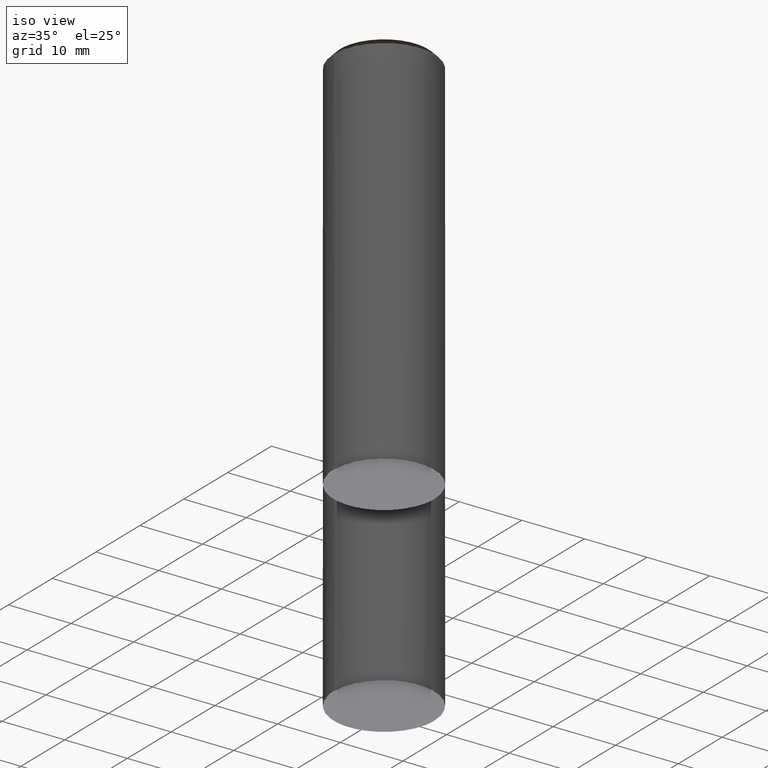
[diagram: clean part render]
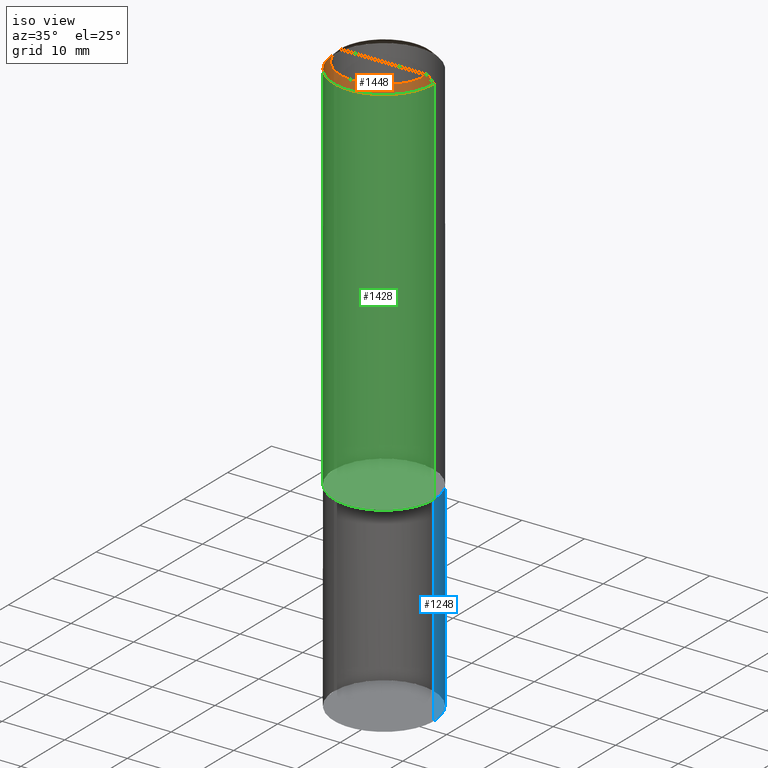
[diagram: same view with three faces highlighted in distinct colors, each labeled with its STEP entity id]
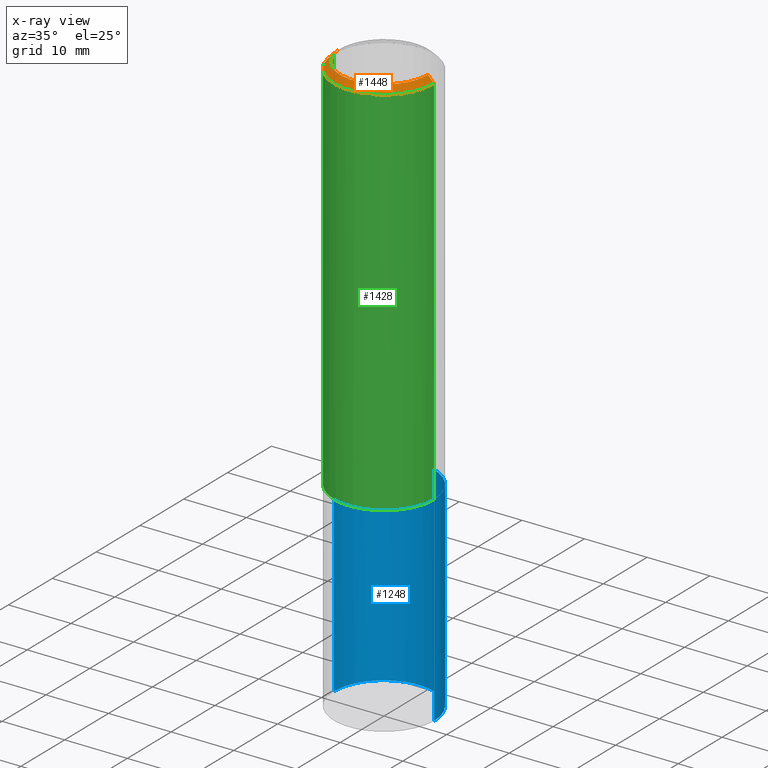
[diagram: x-ray of the same camera — body ghosted, the three highlighted faces saturated]
A machine part, iso view with three faces highlighted in distinct colors.
The next image is the same camera in x-ray (body ghosted, the three faces saturated) — at least one of them is partly hidden behind the body in this view.
Their STEP definitions:

[orange] entity #1448 — the highlighted face is a freeform B-spline surface patch.
#1190=CARTESIAN_POINT('',(8.0,0.0,60.0));
#1194=CARTESIAN_POINT('',(-8.0,0.0,60.0));
#1195=CARTESIAN_POINT('',(7.0,0.0,61.0));
#1199=CARTESIAN_POINT('',(-7.0,0.0,61.0));
#1201=CARTESIAN_POINT('',(-8.0,-8.0,60.0));
#1202=CARTESIAN_POINT('',(0.0,-8.0,60.0));
#1203=CARTESIAN_POINT('',(8.0,-8.0,60.0));
#1204=CARTESIAN_POINT('',(-7.0,-7.0,61.0));
#1205=CARTESIAN_POINT('',(0.0,-7.0,61.0));
#1206=CARTESIAN_POINT('',(7.0,-7.0,61.0));
#1429=(
BOUNDED_SURFACE()
B_SPLINE_SURFACE(1,2,(
(#1194,#1201,#1202,#1203,#1190),
(#1199,#1204,#1205,#1206,#1195)
), .UNSPECIFIED.,.F.,.F.,.F.)
B_SPLINE_SURFACE_WITH_KNOTS((2,2),(3,2,3),(
0.0,1.0),(
0.0,0.5,1.0), .UNSPECIFIED.)
GEOMETRIC_REPRESENTATION_ITEM()
RATIONAL_B_SPLINE_SURFACE(((1.0,0.707106781187,1.0,0.707106781187,1.0),
(1.0,0.707106781187,1.0,0.707106781187,1.0)
))
REPRESENTATION_ITEM('')
SURFACE()
);
#1430=(
BOUNDED_CURVE()
B_SPLINE_CURVE(2,(#1190,#1203,#1202,#1201,#1194),.UNSPECIFIED.,.F.,.F.)
B_SPLINE_CURVE_WITH_KNOTS((3,2,3),
(0.0,0.5,1.0),.UNSPECIFIED.)
CURVE()
GEOMETRIC_REPRESENTATION_ITEM()
RATIONAL_B_SPLINE_CURVE((1.0,0.707106781187,1.0,0.707106781187,1.0))
REPRESENTATION_ITEM('')
);
#1431=(
BOUNDED_CURVE()
B_SPLINE_CURVE(1,(#1194,#1199),.UNSPECIFIED.,.F.,.F.)
B_SPLINE_CURVE_WITH_KNOTS((2,2),
(0.0,1.0),.UNSPECIFIED.)
CURVE()
GEOMETRIC_REPRESENTATION_ITEM()
RATIONAL_B_SPLINE_CURVE((1.0,1.0))
REPRESENTATION_ITEM('')
);
#1432=(
BOUNDED_CURVE()
B_SPLINE_CURVE(2,(#1199,#1204,#1205,#1206,#1195),.UNSPECIFIED.,.F.,.F.)
B_SPLINE_CURVE_WITH_KNOTS((3,2,3),
(0.0,0.5,1.0),.UNSPECIFIED.)
CURVE()
GEOMETRIC_REPRESENTATION_ITEM()
RATIONAL_B_SPLINE_CURVE((1.0,0.707106781187,1.0,0.707106781187,1.0))
REPRESENTATION_ITEM('')
);
#1433=(
BOUNDED_CURVE()
B_SPLINE_CURVE(1,(#1195,#1190),.UNSPECIFIED.,.F.,.F.)
B_SPLINE_CURVE_WITH_KNOTS((2,2),
(0.0,1.0),.UNSPECIFIED.)
CURVE()
GEOMETRIC_REPRESENTATION_ITEM()
RATIONAL_B_SPLINE_CURVE((1.0,1.0))
REPRESENTATION_ITEM('')
);
#1434=VERTEX_POINT('',#1190);
#1435=VERTEX_POINT('',#1194);
#1436=VERTEX_POINT('',#1195);
#1437=VERTEX_POINT('',#1199);
#1438=EDGE_CURVE('',#1434,#1435,#1430,.T.);
#1439=EDGE_CURVE('',#1435,#1437,#1431,.T.);
#1440=EDGE_CURVE('',#1437,#1436,#1432,.T.);
#1441=EDGE_CURVE('',#1436,#1434,#1433,.T.);
#1442=ORIENTED_EDGE('',*,*,#1438,.T.);
#1443=ORIENTED_EDGE('',*,*,#1439,.T.);
#1444=ORIENTED_EDGE('',*,*,#1440,.T.);
#1445=ORIENTED_EDGE('',*,*,#1441,.T.);
#1446=EDGE_LOOP('',(#1442,#1443,#1444,#1445));
#1447=FACE_OUTER_BOUND('',#1446,.T.);
#1448=ADVANCED_FACE('',(#1447),#1429,.T.);

[blue] entity #1248 — the highlighted face is a freeform B-spline surface patch.
#1174=CARTESIAN_POINT('',(8.0,0.0,-32.0));
#1175=CARTESIAN_POINT('',(8.0,8.0,-32.0));
#1176=CARTESIAN_POINT('',(0.0,8.0,-32.0));
#1177=CARTESIAN_POINT('',(-8.0,8.0,-32.0));
#1178=CARTESIAN_POINT('',(-8.0,0.0,-32.0));
#1179=CARTESIAN_POINT('',(8.0,0.0,0.0));
#1180=CARTESIAN_POINT('',(8.0,8.0,0.0));
#1181=CARTESIAN_POINT('',(0.0,8.0,0.0));
#1182=CARTESIAN_POINT('',(-8.0,8.0,0.0));
#1183=CARTESIAN_POINT('',(-8.0,0.0,0.0));
#1229=(
BOUNDED_SURFACE()
B_SPLINE_SURFACE(1,2,(
(#1174,#1175,#1176,#1177,#1178),
(#1179,#1180,#1181,#1182,#1183)
), .UNSPECIFIED.,.F.,.F.,.F.)
B_SPLINE_SURFACE_WITH_KNOTS((2,2),(3,2,3),(
0.0,1.0),(
0.0,0.5,1.0), .UNSPECIFIED.)
GEOMETRIC_REPRESENTATION_ITEM()
RATIONAL_B_SPLINE_SURFACE(((1.0,0.707106781187,1.0,0.707106781187,1.0),
(1.0,0.707106781187,1.0,0.707106781187,1.0)
))
REPRESENTATION_ITEM('')
SURFACE()
);
#1230=(
BOUNDED_CURVE()
B_SPLINE_CURVE(2,(#1178,#1177,#1176,#1175,#1174),.UNSPECIFIED.,.F.,.F.)
B_SPLINE_CURVE_WITH_KNOTS((3,2,3),
(0.0,0.5,1.0),.UNSPECIFIED.)
CURVE()
GEOMETRIC_REPRESENTATION_ITEM()
RATIONAL_B_SPLINE_CURVE((1.0,0.707106781187,1.0,0.707106781187,1.0))
REPRESENTATION_ITEM('')
);
#1231=(
BOUNDED_CURVE()
B_SPLINE_CURVE(1,(#1174,#1179),.UNSPECIFIED.,.F.,.F.)
B_SPLINE_CURVE_WITH_KNOTS((2,2),
(0.0,1.0),.UNSPECIFIED.)
CURVE()
GEOMETRIC_REPRESENTATION_ITEM()
RATIONAL_B_SPLINE_CURVE((1.0,1.0))
REPRESENTATION_ITEM('')
);
#1232=(
BOUNDED_CURVE()
B_SPLINE_CURVE(2,(#1179,#1180,#1181,#1182,#1183),.UNSPECIFIED.,.F.,.F.)
B_SPLINE_CURVE_WITH_KNOTS((3,2,3),
(0.0,0.5,1.0),.UNSPECIFIED.)
CURVE()
GEOMETRIC_REPRESENTATION_ITEM()
RATIONAL_B_SPLINE_CURVE((1.0,0.707106781187,1.0,0.707106781187,1.0))
REPRESENTATION_ITEM('')
);
#1233=(
BOUNDED_CURVE()
B_SPLINE_CURVE(1,(#1183,#1178),.UNSPECIFIED.,.F.,.F.)
B_SPLINE_CURVE_WITH_KNOTS((2,2),
(0.0,1.0),.UNSPECIFIED.)
CURVE()
GEOMETRIC_REPRESENTATION_ITEM()
RATIONAL_B_SPLINE_CURVE((1.0,1.0))
REPRESENTATION_ITEM('')
);
#1234=VERTEX_POINT('',#1174);
#1235=VERTEX_POINT('',#1178);
#1236=VERTEX_POINT('',#1179);
#1237=VERTEX_POINT('',#1183);
#1238=EDGE_CURVE('',#1235,#1234,#1230,.T.);
#1239=EDGE_CURVE('',#1234,#1236,#1231,.T.);
#1240=EDGE_CURVE('',#1236,#1237,#1232,.T.);
#1241=EDGE_CURVE('',#1237,#1235,#1233,.T.);
#1242=ORIENTED_EDGE('',*,*,#1238,.T.);
#1243=ORIENTED_EDGE('',*,*,#1239,.T.);
#1244=ORIENTED_EDGE('',*,*,#1240,.T.);
#1245=ORIENTED_EDGE('',*,*,#1241,.T.);
#1246=EDGE_LOOP('',(#1242,#1243,#1244,#1245));
#1247=FACE_OUTER_BOUND('',#1246,.T.);
#1248=ADVANCED_FACE('',(#1247),#1229,.T.);

[green] entity #1428 — the highlighted face is a freeform B-spline surface patch.
#1179=CARTESIAN_POINT('',(8.0,0.0,0.0));
#1183=CARTESIAN_POINT('',(-8.0,0.0,0.0));
#1187=CARTESIAN_POINT('',(-8.0,-8.0,0.0));
#1188=CARTESIAN_POINT('',(0.0,-8.0,0.0));
#1189=CARTESIAN_POINT('',(8.0,-8.0,0.0));
#1190=CARTESIAN_POINT('',(8.0,0.0,60.0));
#1194=CARTESIAN_POINT('',(-8.0,0.0,60.0));
#1201=CARTESIAN_POINT('',(-8.0,-8.0,60.0));
#1202=CARTESIAN_POINT('',(0.0,-8.0,60.0));
#1203=CARTESIAN_POINT('',(8.0,-8.0,60.0));
#1409=(
BOUNDED_SURFACE()
B_SPLINE_SURFACE(1,2,(
(#1183,#1187,#1188,#1189,#1179),
(#1194,#1201,#1202,#1203,#1190)
), .UNSPECIFIED.,.F.,.F.,.F.)
B_SPLINE_SURFACE_WITH_KNOTS((2,2),(3,2,3),(
0.0,1.0),(
0.0,0.5,1.0), .UNSPECIFIED.)
GEOMETRIC_REPRESENTATION_ITEM()
RATIONAL_B_SPLINE_SURFACE(((1.0,0.707106781187,1.0,0.707106781187,1.0),
(1.0,0.707106781187,1.0,0.707106781187,1.0)
))
REPRESENTATION_ITEM('')
SURFACE()
);
#1410=(
BOUNDED_CURVE()
B_SPLINE_CURVE(2,(#1179,#1189,#1188,#1187,#1183),.UNSPECIFIED.,.F.,.F.)
B_SPLINE_CURVE_WITH_KNOTS((3,2,3),
(0.0,0.5,1.0),.UNSPECIFIED.)
CURVE()
GEOMETRIC_REPRESENTATION_ITEM()
RATIONAL_B_SPLINE_CURVE((1.0,0.707106781187,1.0,0.707106781187,1.0))
REPRESENTATION_ITEM('')
);
#1411=(
BOUNDED_CURVE()
B_SPLINE_CURVE(1,(#1183,#1194),.UNSPECIFIED.,.F.,.F.)
B_SPLINE_CURVE_WITH_KNOTS((2,2),
(0.0,1.0),.UNSPECIFIED.)
CURVE()
GEOMETRIC_REPRESENTATION_ITEM()
RATIONAL_B_SPLINE_CURVE((1.0,1.0))
REPRESENTATION_ITEM('')
);
#1412=(
BOUNDED_CURVE()
B_SPLINE_CURVE(2,(#1194,#1201,#1202,#1203,#1190),.UNSPECIFIED.,.F.,.F.)
B_SPLINE_CURVE_WITH_KNOTS((3,2,3),
(0.0,0.5,1.0),.UNSPECIFIED.)
CURVE()
GEOMETRIC_REPRESENTATION_ITEM()
RATIONAL_B_SPLINE_CURVE((1.0,0.707106781187,1.0,0.707106781187,1.0))
REPRESENTATION_ITEM('')
);
#1413=(
BOUNDED_CURVE()
B_SPLINE_CURVE(1,(#1190,#1179),.UNSPECIFIED.,.F.,.F.)
B_SPLINE_CURVE_WITH_KNOTS((2,2),
(0.0,1.0),.UNSPECIFIED.)
CURVE()
GEOMETRIC_REPRESENTATION_ITEM()
RATIONAL_B_SPLINE_CURVE((1.0,1.0))
REPRESENTATION_ITEM('')
);
#1414=VERTEX_POINT('',#1179);
#1415=VERTEX_POINT('',#1183);
#1416=VERTEX_POINT('',#1190);
#1417=VERTEX_POINT('',#1194);
#1418=EDGE_CURVE('',#1414,#1415,#1410,.T.);
#1419=EDGE_CURVE('',#1415,#1417,#1411,.T.);
#1420=EDGE_CURVE('',#1417,#1416,#1412,.T.);
#1421=EDGE_CURVE('',#1416,#1414,#1413,.T.);
#1422=ORIENTED_EDGE('',*,*,#1418,.T.);
#1423=ORIENTED_EDGE('',*,*,#1419,.T.);
#1424=ORIENTED_EDGE('',*,*,#1420,.T.);
#1425=ORIENTED_EDGE('',*,*,#1421,.T.);
#1426=EDGE_LOOP('',(#1422,#1423,#1424,#1425));
#1427=FACE_OUTER_BOUND('',#1426,.T.);
#1428=ADVANCED_FACE('',(#1427),#1409,.T.);